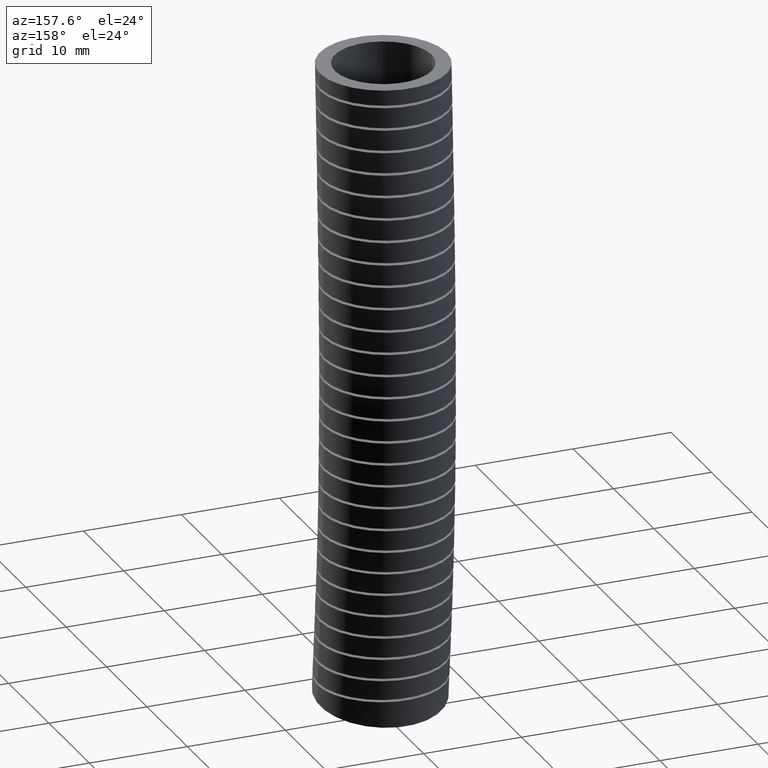
[diagram: clean part render]
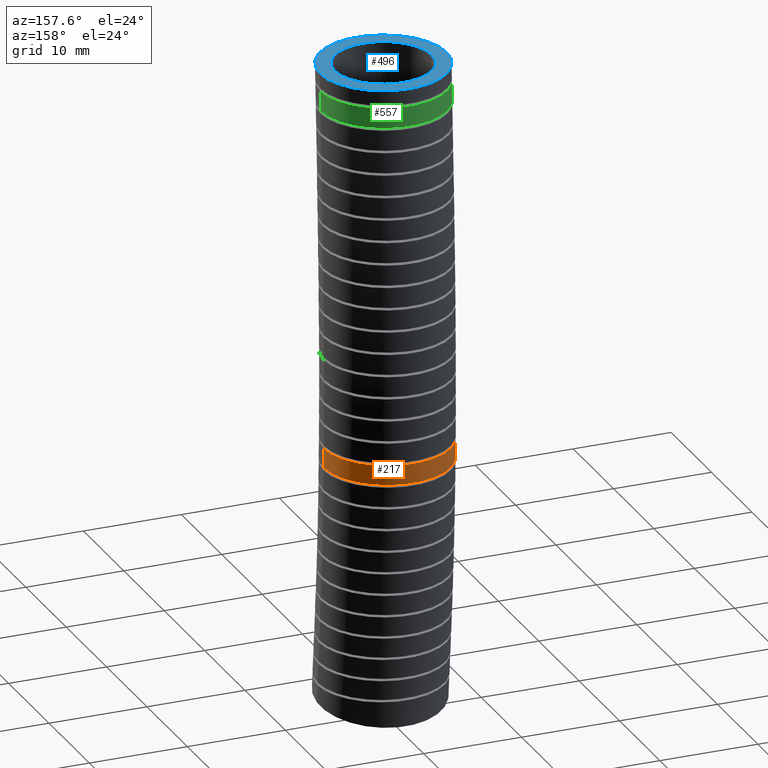
[diagram: same view with three faces highlighted in distinct colors, each labeled with its STEP entity id]
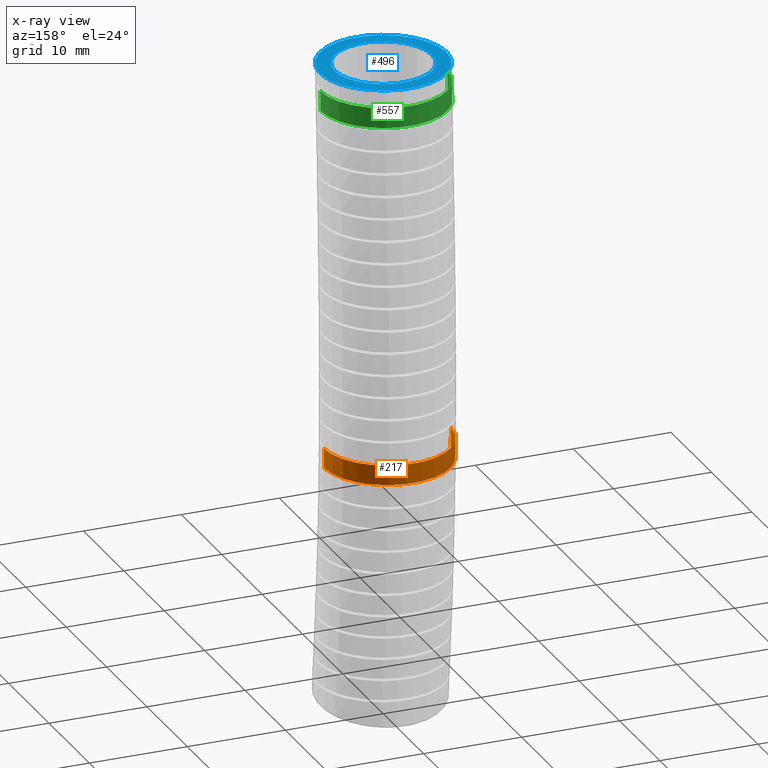
[diagram: x-ray of the same camera — body ghosted, the three highlighted faces saturated]
A machine part, auxiliary view with three faces highlighted in distinct colors.
The next image is the same camera in x-ray (body ghosted, the three faces saturated) — at least one of them is partly hidden behind the body in this view.
Their STEP definitions:

[orange] entity #217 — the highlighted face is a freeform B-spline surface patch.
#25 = EDGE_CURVE ( 'NONE', #59, #26, #1853, .T. ) ;
#26 = VERTEX_POINT ( 'NONE', #1852 ) ;
#29 = VERTEX_POINT ( 'NONE', #2042 ) ;
#31 = EDGE_CURVE ( 'NONE', #58, #29, #1890, .T. ) ;
#58 = VERTEX_POINT ( 'NONE', #2480 ) ;
#59 = VERTEX_POINT ( 'NONE', #2478 ) ;
#217 = ADVANCED_FACE ( 'NONE', ( #8853 ), #8918, .T. ) ;
#218 = EDGE_LOOP ( 'NONE', ( #219, #220, #222, #223 ) ) ;
#219 = ORIENTED_EDGE ( 'NONE', *, *, #25, .F. ) ;
#220 = ORIENTED_EDGE ( 'NONE', *, *, #221, .T. ) ;
#221 = EDGE_CURVE ( 'NONE', #59, #58, #9163, .T. ) ;
#222 = ORIENTED_EDGE ( 'NONE', *, *, #31, .T. ) ;
#223 = ORIENTED_EDGE ( 'NONE', *, *, #224, .T. ) ;
#224 = EDGE_CURVE ( 'NONE', #29, #26, #9132, .T. ) ;
#1850 = CARTESIAN_POINT ( 'NONE',  ( -0.2550000000000000000, 0.03926403961793851300, -1.535937401016798100 ) ) ;
#1851 = CARTESIAN_POINT ( 'NONE',  ( -0.2550000000000000600, 0.03971088625735163400, -1.509273348519600400 ) ) ;
#1852 = CARTESIAN_POINT ( 'NONE',  ( -0.2550000000000000600, 0.03809084991526876000, -1.589254670706610200 ) ) ;
#1853 = B_SPLINE_CURVE_WITH_KNOTS ( 'NONE', 3,
 ( #1851, #1850, #2044, #2043 ),
 .UNSPECIFIED., .F., .F.,
 ( 4, 4 ),
 ( 0.5864015066094011600, 0.6175329930181328000 ),
 .UNSPECIFIED. ) ;
#1886 = CARTESIAN_POINT ( 'NONE',  ( 0.2550000000000000000, 0.03809084992437299800, -1.589254670515454000 ) ) ;
#1887 = CARTESIAN_POINT ( 'NONE',  ( 0.2550000000000000000, 0.03872564752480352200, -1.562597904482537500 ) ) ;
#1888 = CARTESIAN_POINT ( 'NONE',  ( 0.2550000000000000000, 0.03926403961655331600, -1.535937401074538400 ) ) ;
#1889 = CARTESIAN_POINT ( 'NONE',  ( 0.2550000000000000000, 0.03971088625124342300, -1.509273348701841900 ) ) ;
#1890 = B_SPLINE_CURVE_WITH_KNOTS ( 'NONE', 3,
 ( #1889, #1888, #1887, #1886 ),
 .UNSPECIFIED., .F., .F.,
 ( 4, 4 ),
 ( 0.5864015066803463000, 0.6175329929436759200 ),
 .UNSPECIFIED. ) ;
#2042 = CARTESIAN_POINT ( 'NONE',  ( 0.2550000000000000000, 0.03809084992437299800, -1.589254670515454000 ) ) ;
#2043 = CARTESIAN_POINT ( 'NONE',  ( -0.2550000000000000600, 0.03809084991526876000, -1.589254670706610200 ) ) ;
#2044 = CARTESIAN_POINT ( 'NONE',  ( -0.2550000000000000000, 0.03872564752367486200, -1.562597904549317500 ) ) ;
#2478 = CARTESIAN_POINT ( 'NONE',  ( -0.2550000000000000600, 0.03971088625735163400, -1.509273348519600400 ) ) ;
#2480 = CARTESIAN_POINT ( 'NONE',  ( 0.2550000000000000000, 0.03971088625124342300, -1.509273348701841900 ) ) ;
#8640 = CARTESIAN_POINT ( 'NONE',  ( -0.2550000000000000000, 3.122849337825751200E-017, 0.0000000000000000000 ) ) ;
#8641 = CARTESIAN_POINT ( 'NONE',  ( -0.2550000000000000000, -0.5345687628602172600, -2.495768177001302000 ) ) ;
#8698 = CARTESIAN_POINT ( 'NONE',  ( -0.2549999999999999500, 0.5331445723641462500, -0.4883764727230331400 ) ) ;
#8699 = CARTESIAN_POINT ( 'NONE',  ( -0.2549999999999999500, 0.5100000000000000100, 0.0000000000000000000 ) ) ;
#8700 = CARTESIAN_POINT ( 'NONE',  ( -0.2550000000000000000, -0.02999999999999999500, -2.569999999999999800 ) ) ;
#8701 = CARTESIAN_POINT ( 'NONE',  ( -0.2550000000000000000, -0.01126751581493334900, -2.380080086044865000 ) ) ;
#8792 = CARTESIAN_POINT ( 'NONE',  ( -0.2550000000000000000, 0.02578591590436009300, -2.004412636156899000 ) ) ;
#8793 = CARTESIAN_POINT ( 'NONE',  ( -0.2550000000000001700, 0.05488873695197826800, -1.148486533150796300 ) ) ;
#8794 = CARTESIAN_POINT ( 'NONE',  ( -0.2550000000000000000, 0.02298048079048194800, -0.4808413197099051800 ) ) ;
#8853 = FACE_OUTER_BOUND ( 'NONE', #218, .T. ) ;
#8872 = CARTESIAN_POINT ( 'NONE',  ( -0.2549999999999999500, -0.5167458791807605400, -2.314072652159792300 ) ) ;
#8873 = CARTESIAN_POINT ( 'NONE',  ( -0.2550000000000001200, -0.4814916653277938100, -1.954673297706683400 ) ) ;
#8874 = CARTESIAN_POINT ( 'NONE',  ( -0.2550000000000001200, -0.4555031947619409000, -1.130488866548372800 ) ) ;
#8875 = CARTESIAN_POINT ( 'NONE',  ( -0.2550000000000000600, -0.4871836107831824000, -0.4733061666967772200 ) ) ;
#8876 = CARTESIAN_POINT ( 'NONE',  ( -0.2550000000000000600, -0.5100000000000000100, 0.0000000000000000000 ) ) ;
#8877 = CARTESIAN_POINT ( 'NONE',  ( 0.2549999999999999500, -0.5345687628602172600, -2.495768177001302000 ) ) ;
#8878 = CARTESIAN_POINT ( 'NONE',  ( 0.2549999999999998900, -0.5167458791807605400, -2.314072652159792300 ) ) ;
#8879 = CARTESIAN_POINT ( 'NONE',  ( 0.2550000000000000000, -0.4814916653277938100, -1.954673297706683400 ) ) ;
#8880 = CARTESIAN_POINT ( 'NONE',  ( 0.2550000000000000000, -0.4555031947619409000, -1.130488866548372800 ) ) ;
#8881 = CARTESIAN_POINT ( 'NONE',  ( 0.2550000000000000000, -0.4871836107831824000, -0.4733061666967772200 ) ) ;
#8882 = CARTESIAN_POINT ( 'NONE',  ( 0.2550000000000000000, -0.5100000000000000100, 0.0000000000000000000 ) ) ;
#8883 = CARTESIAN_POINT ( 'NONE',  ( 0.2550000000000000000, -0.03000000000000002700, -2.569999999999999800 ) ) ;
#8884 = CARTESIAN_POINT ( 'NONE',  ( 0.2550000000000000000, -0.01126751581493337800, -2.380080086044865000 ) ) ;
#8885 = CARTESIAN_POINT ( 'NONE',  ( 0.2550000000000000000, 0.02578591590436005500, -2.004412636156899000 ) ) ;
#8886 = CARTESIAN_POINT ( 'NONE',  ( 0.2550000000000001700, 0.05488873695197821200, -1.148486533150796300 ) ) ;
#8908 = CARTESIAN_POINT ( 'NONE',  ( 0.2550000000000000000, 0.02298048079048191000, -0.4808413197099051800 ) ) ;
#8909 = CARTESIAN_POINT ( 'NONE',  ( 0.2550000000000000000, 0.0000000000000000000, 0.0000000000000000000 ) ) ;
#8918 =( BOUNDED_SURFACE ( )  B_SPLINE_SURFACE ( 3, 3, ( 
 ( #8909, #8908, #8886, #8885, #8884, #8883 ),
 ( #8882, #8881, #8880, #8879, #8878, #8877 ),
 ( #8876, #8875, #8874, #8873, #8872, #8641 ),
 ( #8640, #8794, #8793, #8792, #8701, #8700 ),
 ( #8699, #8698, #9048, #9054, #9046, #9224 ),
 ( #9117, #9045, #9128, #9209, #9099, #9191 ),
 ( #9221, #9047, #9164, #9100, #9055, #9122 ) ),
 .UNSPECIFIED., .F., .F., .T. ) 
 B_SPLINE_SURFACE_WITH_KNOTS ( ( 4, 3, 4 ),
 ( 4, 1, 1, 4 ),
 ( 0.0000000000000000000, 0.5000000000000000000, 1.000000000000000000 ),
 ( 0.0000000000000000000, 0.5599999999999998300, 0.7775565539011162200, 1.000000000000000000 ),
 .UNSPECIFIED. ) 
 GEOMETRIC_REPRESENTATION_ITEM ( )  RATIONAL_B_SPLINE_SURFACE ( (
 ( 1.000000000000000000, 1.000000000000000000, 0.9999999999999998900, 1.000000000000000000, 1.000000000000000000, 1.000000000000000000),
 ( 0.3333333333333333100, 0.3333333333333333100, 0.3333333333333332600, 0.3333333333333332600, 0.3333333333333333700, 0.3333333333333333100),
 ( 0.3333333333333333100, 0.3333333333333333100, 0.3333333333333332600, 0.3333333333333332600, 0.3333333333333333700, 0.3333333333333333100),
 ( 1.000000000000000000, 1.000000000000000000, 0.9999999999999998900, 1.000000000000000000, 1.000000000000000000, 1.000000000000000000),
 ( 0.3333333333333333100, 0.3333333333333333100, 0.3333333333333332600, 0.3333333333333332600, 0.3333333333333333700, 0.3333333333333333100),
 ( 0.3333333333333333100, 0.3333333333333333100, 0.3333333333333332600, 0.3333333333333332600, 0.3333333333333333700, 0.3333333333333333100),
 ( 1.000000000000000000, 1.000000000000000000, 0.9999999999999998900, 1.000000000000000000, 1.000000000000000000, 1.000000000000000000) ) ) 
 REPRESENTATION_ITEM ( '' )  SURFACE ( )  );
#9045 = CARTESIAN_POINT ( 'NONE',  ( 0.2550000000000000000, 0.5331445723641462500, -0.4883764727230331400 ) ) ;
#9046 = CARTESIAN_POINT ( 'NONE',  ( -0.2549999999999998400, 0.4942108475508936700, -2.446087519929936800 ) ) ;
#9047 = CARTESIAN_POINT ( 'NONE',  ( 0.2550000000000000000, 0.02298048079048191000, -0.4808413197099051800 ) ) ;
#9048 = CARTESIAN_POINT ( 'NONE',  ( -0.2550000000000000000, 0.5652806686658973200, -1.166484199753219600 ) ) ;
#9049 = CARTESIAN_POINT ( 'NONE',  ( 0.2533237959360839000, 0.07326475909600904700, -1.509273348519601500 ) ) ;
#9050 = CARTESIAN_POINT ( 'NONE',  ( 0.2468225392035945400, 0.1058230730591183500, -1.509273348519601300 ) ) ;
#9051 = CARTESIAN_POINT ( 'NONE',  ( 0.2419760457097122100, 0.1218189898898046400, -1.509273348519599300 ) ) ;
#9052 = CARTESIAN_POINT ( 'NONE',  ( 0.2290840920248981600, 0.1528583650059699400, -1.509273348519600200 ) ) ;
#9053 = CARTESIAN_POINT ( 'NONE',  ( 0.2212166436704498000, 0.1675050699954930800, -1.509273348519600400 ) ) ;
#9054 = CARTESIAN_POINT ( 'NONE',  ( -0.2550000000000000000, 0.5330634971365140200, -2.054151974607116000 ) ) ;
#9055 = CARTESIAN_POINT ( 'NONE',  ( 0.2550000000000000000, -0.01126751581493337800, -2.380080086044865000 ) ) ;
#9070 = CARTESIAN_POINT ( 'NONE',  ( 0.08210551571717823700, 0.2814600727404311700, -1.509273348519599700 ) ) ;
#9071 = CARTESIAN_POINT ( 'NONE',  ( 0.06620433255137607400, 0.2862911243094117300, -1.509273348519599900 ) ) ;
#9072 = CARTESIAN_POINT ( 'NONE',  ( 0.03328126228109027500, 0.2928328317543039700, -1.509273348519600400 ) ) ;
#9073 = CARTESIAN_POINT ( 'NONE',  ( 0.01659863123292443600, 0.2944559380396627500, -1.509273348519600600 ) ) ;
#9090 = CARTESIAN_POINT ( 'NONE',  ( -0.1555107254657036300, 0.2422847440057891400, -1.509273348519602200 ) ) ;
#9091 = CARTESIAN_POINT ( 'NONE',  ( -0.1683573086689406400, 0.2317684212808224500, -1.509273348519599300 ) ) ;
#9092 = CARTESIAN_POINT ( 'NONE',  ( -0.1861061264253466300, 0.2140611977596760500, -1.509273348519599300 ) ) ;
#9093 = CARTESIAN_POINT ( 'NONE',  ( 0.2416018565619804900, 0.1200142209216104700, -1.589254670706608600 ) ) ;
#9094 = CARTESIAN_POINT ( 'NONE',  ( 0.2464610988455098200, 0.1040008164514280000, -1.589254670706609100 ) ) ;
#9095 = CARTESIAN_POINT ( 'NONE',  ( 0.2484818746339820800, 0.09592447255879146800, -1.589254670706609300 ) ) ;
#9096 = CARTESIAN_POINT ( 'NONE',  ( 0.2533450115434093800, 0.07149117388751959100, -1.589254670706609100 ) ) ;
#9097 = CARTESIAN_POINT ( 'NONE',  ( 0.2550000000000000000, 0.05493196512750902300, -1.589254670515454000 ) ) ;
#9098 = CARTESIAN_POINT ( 'NONE',  ( 0.2550000000000000000, 0.03809084992437299800, -1.589254670515454000 ) ) ;
#9099 = CARTESIAN_POINT ( 'NONE',  ( 0.2549999999999998900, 0.4942108475508936700, -2.446087519929936800 ) ) ;
#9100 = CARTESIAN_POINT ( 'NONE',  ( 0.2550000000000000000, 0.02578591590436005500, -2.004412636156899000 ) ) ;
#9101 = CARTESIAN_POINT ( 'NONE',  ( -0.2517005731967671400, 0.08139245072333196900, -1.509273348519599900 ) ) ;
#9102 = CARTESIAN_POINT ( 'NONE',  ( -0.2529313840912208500, 0.07315693399549214000, -1.509273348519599700 ) ) ;
#9103 = CARTESIAN_POINT ( 'NONE',  ( -0.2545837305522811200, 0.05649663653130327500, -1.509273348519599700 ) ) ;
#9104 = CARTESIAN_POINT ( 'NONE',  ( -0.2550000000000000600, 0.04805852652228647500, -1.509273348519599900 ) ) ;
#9105 = CARTESIAN_POINT ( 'NONE',  ( -0.2550000000000000600, 0.03971088625735163400, -1.509273348519600400 ) ) ;
#9110 = CARTESIAN_POINT ( 'NONE',  ( 0.06610887618482201600, 0.2842930817575552400, -1.589254670706609100 ) ) ;
#9111 = CARTESIAN_POINT ( 'NONE',  ( 0.08206939222082192100, 0.2794509896782597600, -1.589254670706609500 ) ) ;
#9112 = CARTESIAN_POINT ( 'NONE',  ( 0.09771796402355056900, 0.2738511480929236000, -1.589254670706608000 ) ) ;
#9113 = CARTESIAN_POINT ( 'NONE',  ( 0.1127511215053792500, 0.2667563921994077800, -1.589254670706608600 ) ) ;
#9114 = CARTESIAN_POINT ( 'NONE',  ( 0.1274718980540540700, 0.2589028260040869800, -1.589254670706609100 ) ) ;
#9115 = CARTESIAN_POINT ( 'NONE',  ( 0.1347144565342605900, 0.2545696426308076100, -1.589254670706608200 ) ) ;
#9116 = CARTESIAN_POINT ( 'NONE',  ( 0.1556268995389365800, 0.2406065555169641900, -1.589254670706609100 ) ) ;
#9117 = CARTESIAN_POINT ( 'NONE',  ( 0.2550000000000000000, 0.5100000000000000100, 0.0000000000000000000 ) ) ;
#9118 = CARTESIAN_POINT ( 'NONE',  ( 0.1683567444950547800, 0.2317663300342982500, -1.509273348519600400 ) ) ;
#9119 = CARTESIAN_POINT ( 'NONE',  ( 0.1555153564085029700, 0.2422829733255813000, -1.509273348519599900 ) ) ;
#9120 = CARTESIAN_POINT ( 'NONE',  ( 0.1277813282682002700, 0.2607918831035345700, -1.509273348519599900 ) ) ;
#9121 = CARTESIAN_POINT ( 'NONE',  ( 0.1128199175349941200, 0.2687687308661153000, -1.509273348519599000 ) ) ;
#9122 = CARTESIAN_POINT ( 'NONE',  ( 0.2550000000000000000, -0.03000000000000002700, -2.569999999999999800 ) ) ;
#9123 = CARTESIAN_POINT ( 'NONE',  ( -0.03321331882130232300, 0.2924233554268563800, -1.509273348519599300 ) ) ;
#9124 = CARTESIAN_POINT ( 'NONE',  ( -0.04156784969522759500, 0.2911876080851543100, -1.509273348519599300 ) ) ;
#9125 = CARTESIAN_POINT ( 'NONE',  ( -0.06620681567408628900, 0.2862880330773825400, -1.509273348519599000 ) ) ;
#9126 = CARTESIAN_POINT ( 'NONE',  ( -0.1917888406593112900, 0.2078028971356921400, -1.509273348519599000 ) ) ;
#9127 = CARTESIAN_POINT ( 'NONE',  ( -0.2024045113602908100, 0.1948839236701858400, -1.509273348519599300 ) ) ;
#9128 = CARTESIAN_POINT ( 'NONE',  ( 0.2550000000000000000, 0.5652806686658973200, -1.166484199753219600 ) ) ;
#9130 = CARTESIAN_POINT ( 'NONE',  ( 0.2550000000000000000, 0.03971088625124342300, -1.509273348701841900 ) ) ;
#9131 = CARTESIAN_POINT ( 'NONE',  ( 0.2550000000000001200, 0.05654866439441922500, -1.509273348701842600 ) ) ;
#9132 = B_SPLINE_CURVE_WITH_KNOTS ( 'NONE', 3,
 ( #9098, #9097, #9096, #9095, #9094, #9093, #9162, #9161, #9160, #9159, #9158, #9157, #9116, #9115, #9114, #9113, #9112, #9111, #9110, #9190, #9189, #9188, #9187, #9186, #9185, #9208, #9207, #9206, #9205, #9204, #9203, #9202, #9201, #9200, #9199, #9154, #9153, #9152, #9151, #9150, #9149, #9148, #9147 ),
 .UNSPECIFIED., .F., .F.,
 ( 4, 2, 2, 2, 2, 2, 2, 2, 1, 2, 2, 2, 2, 2, 2, 2, 2, 2, 2, 2, 2, 4 ),
 ( 0.0000000000000000000, 0.001265071292418973800, 0.001897606938628460600, 0.002530142584837947600, 0.003795213877256923300, 0.005060285169675899500, 0.006325356462094876100, 0.006957892108304364900, 0.007590427754513853600, 0.008222963400723343200, 0.008855499046932831900, 0.01012057033935180900, 0.01138564163177078300, 0.01265071292418976100, 0.01328324857039925000, 0.01391578421660873800, 0.01518085550902771600, 0.01644592680144669700, 0.01707846244765618600, 0.01771099809386567400, 0.01897606938628465900, 0.02024114067870364000 ),
 .UNSPECIFIED. ) ;
#9147 = CARTESIAN_POINT ( 'NONE',  ( -0.2550000000000000600, 0.03809084991526876000, -1.589254670706610200 ) ) ;
#9148 = CARTESIAN_POINT ( 'NONE',  ( -0.2550000000000000000, 0.05472633590466687000, -1.589254670706609300 ) ) ;
#9149 = CARTESIAN_POINT ( 'NONE',  ( -0.2533306643626235800, 0.07162070773807230300, -1.589254670706610200 ) ) ;
#9150 = CARTESIAN_POINT ( 'NONE',  ( -0.2468077734956611000, 0.1042774173770860000, -1.589254670706609500 ) ) ;
#9151 = CARTESIAN_POINT ( 'NONE',  ( -0.2419840600609508300, 0.1201665895446805400, -1.589254670706608900 ) ) ;
#9152 = CARTESIAN_POINT ( 'NONE',  ( -0.2323765005185891600, 0.1433335373705122700, -1.589254670706608900 ) ) ;
#9153 = CARTESIAN_POINT ( 'NONE',  ( -0.2287556838258183700, 0.1509743573357667200, -1.589254670706608900 ) ) ;
#9154 = CARTESIAN_POINT ( 'NONE',  ( -0.2208576316014562700, 0.1657127939588876900, -1.589254670706608000 ) ) ;
#9155 = CARTESIAN_POINT ( 'NONE',  ( -0.2420036808960887000, 0.1217414761873012700, -1.509273348519600600 ) ) ;
#9156 = CARTESIAN_POINT ( 'NONE',  ( -0.2468233348364004300, 0.1058219121781865300, -1.509273348519600200 ) ) ;
#9157 = CARTESIAN_POINT ( 'NONE',  ( 0.1684691928427706800, 0.2300634764716632500, -1.589254670706609100 ) ) ;
#9158 = CARTESIAN_POINT ( 'NONE',  ( 0.1920065286729681900, 0.2065663450617955300, -1.589254670706609300 ) ) ;
#9159 = CARTESIAN_POINT ( 'NONE',  ( 0.2027833648376966300, 0.1934553817776782400, -1.589254670706609500 ) ) ;
#9160 = CARTESIAN_POINT ( 'NONE',  ( 0.2213027244776719900, 0.1657561670887602300, -1.589254670706609100 ) ) ;
#9161 = CARTESIAN_POINT ( 'NONE',  ( 0.2291417677967701500, 0.1511192736287420300, -1.589254670706609300 ) ) ;
#9162 = CARTESIAN_POINT ( 'NONE',  ( 0.2387499219382172300, 0.1279722221221212500, -1.589254670706609500 ) ) ;
#9163 = B_SPLINE_CURVE_WITH_KNOTS ( 'NONE', 3,
 ( #9105, #9104, #9103, #9102, #9101, #9156, #9155, #9212, #9211, #9210, #9127, #9126, #9092, #9091, #9090, #9194, #9193, #9192, #9125, #9124, #9123, #9166, #9165, #9073, #9072, #9071, #9070, #9121, #9120, #9119, #9118, #9198, #9197, #9196, #9195, #9053, #9052, #9051, #9050, #9049, #9131, #9130 ),
 .UNSPECIFIED., .F., .F.,
 ( 4, 2, 2, 2, 2, 2, 2, 2, 2, 2, 2, 2, 2, 2, 2, 2, 2, 2, 2, 2, 4 ),
 ( 0.02045605950080125700, 0.02109536230628185700, 0.02173466511176246100, 0.02301327072272366500, 0.02429187633368486800, 0.02493117913916547200, 0.02557048194464607600, 0.02684908755560727300, 0.02812769316656847300, 0.02940629877752967000, 0.03004560158301027000, 0.03068490438849087000, 0.03196350999945207100, 0.03324211561041326400, 0.03452072122137446500, 0.03579932683233566500, 0.03643862963781626500, 0.03707793244329686500, 0.03835653805425805900, 0.03963514366521925200, 0.04091374927618045300 ),
 .UNSPECIFIED. ) ;
#9164 = CARTESIAN_POINT ( 'NONE',  ( 0.2550000000000001700, 0.05488873695197821200, -1.148486533150796300 ) ) ;
#9165 = CARTESIAN_POINT ( 'NONE',  ( -0.008299771607102792600, 0.2944559083863702600, -1.509273348519600200 ) ) ;
#9166 = CARTESIAN_POINT ( 'NONE',  ( -0.01660224798437046400, 0.2940520929216025000, -1.509273348519599700 ) ) ;
#9185 = CARTESIAN_POINT ( 'NONE',  ( -0.06611536277517415800, 0.2847130709598410000, -1.589254670706609500 ) ) ;
#9186 = CARTESIAN_POINT ( 'NONE',  ( -0.03342404902941884000, 0.2912130504283662000, -1.589254670706609500 ) ) ;
#9187 = CARTESIAN_POINT ( 'NONE',  ( -0.01653809337673999000, 0.2928685122819437200, -1.589254670706609300 ) ) ;
#9188 = CARTESIAN_POINT ( 'NONE',  ( 0.01671231941300794400, 0.2928571631799870000, -1.589254670706609300 ) ) ;
#9189 = CARTESIAN_POINT ( 'NONE',  ( 0.03325158577660584900, 0.2912427474896790400, -1.589254670706609100 ) ) ;
#9190 = CARTESIAN_POINT ( 'NONE',  ( 0.05792811380734166200, 0.2863432158344574900, -1.589254670706610000 ) ) ;
#9191 = CARTESIAN_POINT ( 'NONE',  ( 0.2549999999999999500, 0.4745687628602173200, -2.644231822998695900 ) ) ;
#9192 = CARTESIAN_POINT ( 'NONE',  ( -0.08209945792984083000, 0.2814631069007127500, -1.509273348519601300 ) ) ;
#9193 = CARTESIAN_POINT ( 'NONE',  ( -0.1128398963161232100, 0.2687599442421971200, -1.509273348519601000 ) ) ;
#9194 = CARTESIAN_POINT ( 'NONE',  ( -0.1278139180855743000, 0.2607714521256991300, -1.509273348519601500 ) ) ;
#9195 = CARTESIAN_POINT ( 'NONE',  ( 0.2073573860016038900, 0.1882111749952256100, -1.509273348519600200 ) ) ;
#9196 = CARTESIAN_POINT ( 'NONE',  ( 0.2023921051497819800, 0.1949010072345513100, -1.509273348519601000 ) ) ;
#9197 = CARTESIAN_POINT ( 'NONE',  ( 0.1917524499059365900, 0.2078451889794054900, -1.509273348519601000 ) ) ;
#9198 = CARTESIAN_POINT ( 'NONE',  ( 0.1860759526048428000, 0.2140926244985033900, -1.509273348519601000 ) ) ;
#9199 = CARTESIAN_POINT ( 'NONE',  ( -0.2165699935218550500, 0.1728444922637756800, -1.589254670706608600 ) ) ;
#9200 = CARTESIAN_POINT ( 'NONE',  ( -0.2027124488593196000, 0.1935419017815538400, -1.589254670706608900 ) ) ;
#9201 = CARTESIAN_POINT ( 'NONE',  ( -0.1921351737491931700, 0.2064392737212332700, -1.589254670706609300 ) ) ;
#9202 = CARTESIAN_POINT ( 'NONE',  ( -0.1683199902139635200, 0.2302110690808698600, -1.589254670706609100 ) ) ;
#9203 = CARTESIAN_POINT ( 'NONE',  ( -0.1554391231036200100, 0.2407378648422886000, -1.589254670706610400 ) ) ;
#9204 = CARTESIAN_POINT ( 'NONE',  ( -0.1347136265913344300, 0.2545672102173639500, -1.589254670706610200 ) ) ;
#9205 = CARTESIAN_POINT ( 'NONE',  ( -0.1275693666908830900, 0.2588477703602880500, -1.589254670706609300 ) ) ;
#9206 = CARTESIAN_POINT ( 'NONE',  ( -0.1127978836388715000, 0.2667344707237546100, -1.589254670706609500 ) ) ;
#9207 = CARTESIAN_POINT ( 'NONE',  ( -0.1051563169065449100, 0.2703408664691584500, -1.589254670706608600 ) ) ;
#9208 = CARTESIAN_POINT ( 'NONE',  ( -0.08200628340452403900, 0.2799049084568057100, -1.589254670706608600 ) ) ;
#9209 = CARTESIAN_POINT ( 'NONE',  ( 0.2550000000000000000, 0.5330634971365140200, -2.054151974607116000 ) ) ;
#9210 = CARTESIAN_POINT ( 'NONE',  ( -0.2073635567973275100, 0.1882023651761227700, -1.509273348519601500 ) ) ;
#9211 = CARTESIAN_POINT ( 'NONE',  ( -0.2212159701309335800, 0.1675052567315911100, -1.509273348519601700 ) ) ;
#9212 = CARTESIAN_POINT ( 'NONE',  ( -0.2291052356910608900, 0.1528183946421456900, -1.509273348519600200 ) ) ;
#9221 = CARTESIAN_POINT ( 'NONE',  ( 0.2550000000000000000, 0.0000000000000000000, 0.0000000000000000000 ) ) ;
#9224 = CARTESIAN_POINT ( 'NONE',  ( -0.2549999999999998900, 0.4745687628602173200, -2.644231822998695900 ) ) ;

[blue] entity #496 — the highlighted planar face has unit normal (0, 0, 1).
#444 = EDGE_CURVE ( 'NONE', #1648, #1647, #11854, .T. ) ;
#454 = ORIENTED_EDGE ( 'NONE', *, *, #1796, .F. ) ;
#455 = ORIENTED_EDGE ( 'NONE', *, *, #595, .F. ) ;
#496 = ADVANCED_FACE ( 'NONE', ( #11986, #11985 ), #12028, .T. ) ;
#558 = ORIENTED_EDGE ( 'NONE', *, *, #444, .T. ) ;
#559 = ORIENTED_EDGE ( 'NONE', *, *, #1646, .T. ) ;
#564 = EDGE_LOOP ( 'NONE', ( #454, #455 ) ) ;
#595 = EDGE_CURVE ( 'NONE', #1798, #1797, #12930, .T. ) ;
#596 = EDGE_LOOP ( 'NONE', ( #558, #559 ) ) ;
#1646 = EDGE_CURVE ( 'NONE', #1647, #1648, #7538, .T. ) ;
#1647 = VERTEX_POINT ( 'NONE', #7533 ) ;
#1648 = VERTEX_POINT ( 'NONE', #7528 ) ;
#1796 = EDGE_CURVE ( 'NONE', #1797, #1798, #8106, .T. ) ;
#1797 = VERTEX_POINT ( 'NONE', #8102 ) ;
#1798 = VERTEX_POINT ( 'NONE', #8107 ) ;
#7528 = CARTESIAN_POINT ( 'NONE',  ( 0.2550000000000000000, 0.0000000000000000000, 0.0000000000000000000 ) ) ;
#7533 = CARTESIAN_POINT ( 'NONE',  ( -0.2550000000000000000, 3.122849337825751200E-017, 0.0000000000000000000 ) ) ;
#7534 = DIRECTION ( 'NONE',  ( 1.000000000000000000, 0.0000000000000000000, 0.0000000000000000000 ) ) ;
#7535 = DIRECTION ( 'NONE',  ( 0.0000000000000000000, 0.0000000000000000000, 1.000000000000000000 ) ) ;
#7536 = CARTESIAN_POINT ( 'NONE',  ( 0.0000000000000000000, 0.0000000000000000000, 0.0000000000000000000 ) ) ;
#7537 = AXIS2_PLACEMENT_3D ( 'NONE', #7536, #7535, #7534 ) ;
#7538 = CIRCLE ( 'NONE', #7537, 0.2550000000000000000 ) ;
#8102 = CARTESIAN_POINT ( 'NONE',  ( 0.1950000000000000100, 0.0000000000000000000, 0.0000000000000000000 ) ) ;
#8103 = DIRECTION ( 'NONE',  ( 1.000000000000000000, 0.0000000000000000000, 0.0000000000000000000 ) ) ;
#8104 = DIRECTION ( 'NONE',  ( 0.0000000000000000000, 0.0000000000000000000, 1.000000000000000000 ) ) ;
#8105 = AXIS2_PLACEMENT_3D ( 'NONE', #8176, #8104, #8103 ) ;
#8106 = CIRCLE ( 'NONE', #8105, 0.1950000000000000100 ) ;
#8107 = CARTESIAN_POINT ( 'NONE',  ( -0.1950000000000000100, 2.388061258337338700E-017, 0.0000000000000000000 ) ) ;
#8176 = CARTESIAN_POINT ( 'NONE',  ( 0.0000000000000000000, 0.0000000000000000000, 0.0000000000000000000 ) ) ;
#11850 = DIRECTION ( 'NONE',  ( 1.000000000000000000, 0.0000000000000000000, 0.0000000000000000000 ) ) ;
#11851 = DIRECTION ( 'NONE',  ( 0.0000000000000000000, 0.0000000000000000000, 1.000000000000000000 ) ) ;
#11852 = CARTESIAN_POINT ( 'NONE',  ( 0.0000000000000000000, 0.0000000000000000000, 0.0000000000000000000 ) ) ;
#11853 = AXIS2_PLACEMENT_3D ( 'NONE', #11852, #11851, #11850 ) ;
#11854 = CIRCLE ( 'NONE', #11853, 0.2550000000000000000 ) ;
#11985 = FACE_OUTER_BOUND ( 'NONE', #596, .T. ) ;
#11986 = FACE_BOUND ( 'NONE', #564, .T. ) ;
#12028 = PLANE ( 'NONE',  #12081 ) ;
#12078 = DIRECTION ( 'NONE',  ( 1.000000000000000000, 0.0000000000000000000, 0.0000000000000000000 ) ) ;
#12079 = DIRECTION ( 'NONE',  ( 0.0000000000000000000, 0.0000000000000000000, 1.000000000000000000 ) ) ;
#12080 = CARTESIAN_POINT ( 'NONE',  ( 0.0000000000000000000, 0.0000000000000000000, 0.0000000000000000000 ) ) ;
#12081 = AXIS2_PLACEMENT_3D ( 'NONE', #12080, #12079, #12078 ) ;
#12927 = DIRECTION ( 'NONE',  ( 1.000000000000000000, 0.0000000000000000000, 0.0000000000000000000 ) ) ;
#12928 = DIRECTION ( 'NONE',  ( 0.0000000000000000000, 0.0000000000000000000, 1.000000000000000000 ) ) ;
#12929 = AXIS2_PLACEMENT_3D ( 'NONE', #13136, #12928, #12927 ) ;
#12930 = CIRCLE ( 'NONE', #12929, 0.1950000000000000100 ) ;
#13136 = CARTESIAN_POINT ( 'NONE',  ( 0.0000000000000000000, 0.0000000000000000000, 0.0000000000000000000 ) ) ;

[green] entity #557 — the highlighted face is a freeform B-spline surface patch.
#498 = ORIENTED_EDGE ( 'NONE', *, *, #1653, .T. ) ;
#499 = ORIENTED_EDGE ( 'NONE', *, *, #521, .T. ) ;
#518 = EDGE_LOOP ( 'NONE', ( #579, #519, #498, #499 ) ) ;
#519 = ORIENTED_EDGE ( 'NONE', *, *, #520, .T. ) ;
#520 = EDGE_CURVE ( 'NONE', #1761, #1760, #12254, .T. ) ;
#521 = EDGE_CURVE ( 'NONE', #1767, #1764, #12405, .T. ) ;
#557 = ADVANCED_FACE ( 'NONE', ( #12599 ), #12587, .T. ) ;
#579 = ORIENTED_EDGE ( 'NONE', *, *, #1763, .F. ) ;
#1653 = EDGE_CURVE ( 'NONE', #1760, #1767, #7631, .T. ) ;
#1760 = VERTEX_POINT ( 'NONE', #7865 ) ;
#1761 = VERTEX_POINT ( 'NONE', #7863 ) ;
#1763 = EDGE_CURVE ( 'NONE', #1761, #1764, #7684, .T. ) ;
#1764 = VERTEX_POINT ( 'NONE', #7683 ) ;
#1767 = VERTEX_POINT ( 'NONE', #7891 ) ;
#7629 = CARTESIAN_POINT ( 'NONE',  ( 0.2550000000000000000, 0.003342229895704929000, -0.06999999999999996500 ) ) ;
#7631 = B_SPLINE_CURVE_WITH_KNOTS ( 'NONE', 3,
 ( #7629, #7646, #7645, #7644 ),
 .UNSPECIFIED., .F., .F.,
 ( 4, 4 ),
 ( 0.02717464062037684700, 0.05819250826746008600 ),
 .UNSPECIFIED. ) ;
#7644 = CARTESIAN_POINT ( 'NONE',  ( 0.2549999999999998900, 0.007132320659472311100, -0.1498989255279078400 ) ) ;
#7645 = CARTESIAN_POINT ( 'NONE',  ( 0.2550000000000000000, 0.005876373196357231500, -0.1232662378546238000 ) ) ;
#7646 = CARTESIAN_POINT ( 'NONE',  ( 0.2550000000000000000, 0.004611407261492337900, -0.09663320056008986600 ) ) ;
#7679 = CARTESIAN_POINT ( 'NONE',  ( -0.2550000000000000000, 0.007132320659471501000, -0.1498989255278988800 ) ) ;
#7680 = CARTESIAN_POINT ( 'NONE',  ( -0.2549999999999998900, 0.005876373196356980000, -0.1232662378546178200 ) ) ;
#7681 = CARTESIAN_POINT ( 'NONE',  ( -0.2549999999999998900, 0.004611407261492227700, -0.09663320056008689600 ) ) ;
#7682 = CARTESIAN_POINT ( 'NONE',  ( -0.2550000000000000000, 0.003342229895704961100, -0.06999999999999995100 ) ) ;
#7683 = CARTESIAN_POINT ( 'NONE',  ( -0.2550000000000000000, 0.007132320659471501000, -0.1498989255278988800 ) ) ;
#7684 = B_SPLINE_CURVE_WITH_KNOTS ( 'NONE', 3,
 ( #7682, #7681, #7680, #7679 ),
 .UNSPECIFIED., .F., .F.,
 ( 4, 4 ),
 ( 0.02717464062037684400, 0.05819250826745659500 ),
 .UNSPECIFIED. ) ;
#7863 = CARTESIAN_POINT ( 'NONE',  ( -0.2550000000000000000, 0.003342229895704961100, -0.06999999999999995100 ) ) ;
#7865 = CARTESIAN_POINT ( 'NONE',  ( 0.2550000000000000000, 0.003342229895704929000, -0.06999999999999996500 ) ) ;
#7891 = CARTESIAN_POINT ( 'NONE',  ( 0.2549999999999998900, 0.007132320659472311100, -0.1498989255279078400 ) ) ;
#12242 = CARTESIAN_POINT ( 'NONE',  ( 0.2212431459084317200, 0.1312126908871645800, -0.06999999999999995100 ) ) ;
#12243 = CARTESIAN_POINT ( 'NONE',  ( 0.2073907136003790800, 0.1519379247563979700, -0.06999999999999995100 ) ) ;
#12244 = CARTESIAN_POINT ( 'NONE',  ( 0.2024276326816211700, 0.1586342780973452900, -0.06999999999999996500 ) ) ;
#12245 = CARTESIAN_POINT ( 'NONE',  ( 0.1917920973873415400, 0.1715917221511507100, -0.06999999999999996500 ) ) ;
#12246 = CARTESIAN_POINT ( 'NONE',  ( 0.1861171946465785800, 0.1778462708634355700, -0.06999999999999988200 ) ) ;
#12247 = CARTESIAN_POINT ( 'NONE',  ( 0.1684015404364692100, 0.1955412610910766100, -0.06999999999999989600 ) ) ;
#12248 = CARTESIAN_POINT ( 'NONE',  ( 0.1555610705566262400, 0.2060721096325976700, -0.06999999999999999300 ) ) ;
#12249 = CARTESIAN_POINT ( 'NONE',  ( 0.1278248699638422400, 0.2246080903976648000, -0.06999999999999999300 ) ) ;
#12250 = CARTESIAN_POINT ( 'NONE',  ( 0.1128611705188059100, 0.2325972927125505300, -0.07000000000000003400 ) ) ;
#12251 = CARTESIAN_POINT ( 'NONE',  ( 0.08213832303612182700, 0.2453094989673812500, -0.06999999999999999300 ) ) ;
#12252 = CARTESIAN_POINT ( 'NONE',  ( 0.06623080816052591400, 0.2501492721125149200, -0.07000000000000003400 ) ) ;
#12253 = CARTESIAN_POINT ( 'NONE',  ( 0.03329002285974553400, 0.2567029355867326800, -0.07000000000000004800 ) ) ;
#12254 = B_SPLINE_CURVE_WITH_KNOTS ( 'NONE', 3,
 ( #12271, #12270, #12269, #12268, #12267, #12266, #12265, #12264, #12263, #12262, #12261, #12260, #12259, #12258, #12307, #12306, #12305, #12304, #12303, #12302, #12301, #12300, #12299, #12298, #12253, #12252, #12251, #12250, #12249, #12248, #12247, #12246, #12245, #12244, #12243, #12242, #12413, #12412, #12411, #12410, #12409, #12408 ),
 .UNSPECIFIED., .F., .F.,
 ( 4, 2, 2, 2, 2, 2, 2, 2, 2, 2, 2, 2, 2, 2, 2, 2, 2, 2, 2, 2, 4 ),
 ( 0.02046596434497579800, 0.02110556245283421600, 0.02174516056069263800, 0.02302435677640947400, 0.02430355299212631400, 0.02494315109998473600, 0.02558274920784315400, 0.02686194542355999400, 0.02814114163927683100, 0.02942033785499367100, 0.03005993596285208900, 0.03069953407071050700, 0.03197873028642735100, 0.03325792650214418100, 0.03453712271786102400, 0.03581631893357785400, 0.03645591704143627500, 0.03709551514929469700, 0.03837471136501153400, 0.03965390758072837000, 0.04093310379644520700 ),
 .UNSPECIFIED. ) ;
#12258 = CARTESIAN_POINT ( 'NONE',  ( -0.1684048757228762400, 0.1955410411536724100, -0.06999999999999992300 ) ) ;
#12259 = CARTESIAN_POINT ( 'NONE',  ( -0.1861511829910644200, 0.1778107617414080600, -0.06999999999999992300 ) ) ;
#12260 = CARTESIAN_POINT ( 'NONE',  ( -0.1918320692584426500, 0.1715452441758118200, -0.06999999999999992300 ) ) ;
#12261 = CARTESIAN_POINT ( 'NONE',  ( -0.2024422955114835200, 0.1586141822742742100, -0.06999999999999992300 ) ) ;
#12262 = CARTESIAN_POINT ( 'NONE',  ( -0.2073986768564122200, 0.1519265756353453400, -0.07000000000000000700 ) ) ;
#12263 = CARTESIAN_POINT ( 'NONE',  ( -0.2212432991067021500, 0.1312113305817153300, -0.07000000000000000700 ) ) ;
#12264 = CARTESIAN_POINT ( 'NONE',  ( -0.2291286345480290900, 0.1165098797382444200, -0.07000000000000004800 ) ) ;
#12265 = CARTESIAN_POINT ( 'NONE',  ( -0.2420158665847954600, 0.08541442954292938200, -0.07000000000000006200 ) ) ;
#12266 = CARTESIAN_POINT ( 'NONE',  ( -0.2468311503513281300, 0.06948598249715902400, -0.06999999999999991000 ) ) ;
#12267 = CARTESIAN_POINT ( 'NONE',  ( -0.2517038146969315400, 0.04504379504625150000, -0.06999999999999992300 ) ) ;
#12268 = CARTESIAN_POINT ( 'NONE',  ( -0.2529334356655766900, 0.03680413730714798100, -0.06999999999999999300 ) ) ;
#12269 = CARTESIAN_POINT ( 'NONE',  ( -0.2545841561700302700, 0.02013578064606690000, -0.07000000000000000700 ) ) ;
#12270 = CARTESIAN_POINT ( 'NONE',  ( -0.2550000000000000600, 0.01169381918817614100, -0.06999999999999995100 ) ) ;
#12271 = CARTESIAN_POINT ( 'NONE',  ( -0.2550000000000000000, 0.003342229895704961100, -0.06999999999999995100 ) ) ;
#12298 = CARTESIAN_POINT ( 'NONE',  ( 0.01660328449688659000, 0.2583282918311868800, -0.06999999999999992300 ) ) ;
#12299 = CARTESIAN_POINT ( 'NONE',  ( -0.008307204358373071100, 0.2583279296161975500, -0.06999999999999992300 ) ) ;
#12300 = CARTESIAN_POINT ( 'NONE',  ( -0.01661406317592658100, 0.2579232411214857400, -0.06999999999999999300 ) ) ;
#12301 = CARTESIAN_POINT ( 'NONE',  ( -0.03323462014654829400, 0.2562909799960680900, -0.06999999999999999300 ) ) ;
#12302 = CARTESIAN_POINT ( 'NONE',  ( -0.04159410201453633800, 0.2550524817625476300, -0.06999999999999999300 ) ) ;
#12303 = CARTESIAN_POINT ( 'NONE',  ( -0.06623988223378465800, 0.2501441189013580100, -0.06999999999999996500 ) ) ;
#12304 = CARTESIAN_POINT ( 'NONE',  ( -0.08213738228926893700, 0.2453108704540751300, -0.06999999999999996500 ) ) ;
#12305 = CARTESIAN_POINT ( 'NONE',  ( -0.1128878267086324400, 0.2325852801138512400, -0.06999999999999997900 ) ) ;
#12306 = CARTESIAN_POINT ( 'NONE',  ( -0.1278648040213721500, 0.2245832179215715400, -0.06999999999999999300 ) ) ;
#12307 = CARTESIAN_POINT ( 'NONE',  ( -0.1555595848982552800, 0.2060712846909697500, -0.06999999999999999300 ) ) ;
#12362 = CARTESIAN_POINT ( 'NONE',  ( -0.2550000000000000000, 0.007132320659471501000, -0.1498989255278988800 ) ) ;
#12363 = CARTESIAN_POINT ( 'NONE',  ( -0.2549999999999999500, 0.02383400956351430400, -0.1498989255278988800 ) ) ;
#12364 = CARTESIAN_POINT ( 'NONE',  ( -0.2533744140688325400, 0.04035995972963876700, -0.1498989255278988200 ) ) ;
#12365 = CARTESIAN_POINT ( 'NONE',  ( -0.2468908889789387700, 0.07306241702979372800, -0.1498989255278988000 ) ) ;
#12366 = CARTESIAN_POINT ( 'NONE',  ( -0.2419669698301116800, 0.08930227172900112600, -0.1498989255278989100 ) ) ;
#12367 = CARTESIAN_POINT ( 'NONE',  ( -0.2292444513679477400, 0.1200280981446495000, -0.1498989255278988800 ) ) ;
#12368 = CARTESIAN_POINT ( 'NONE',  ( -0.2214271704760167300, 0.1346964672346943900, -0.1498989255278988200 ) ) ;
#12369 = CARTESIAN_POINT ( 'NONE',  ( -0.2074580132999575600, 0.1556289638108003500, -0.1498989255278988800 ) ) ;
#12370 = CARTESIAN_POINT ( 'NONE',  ( -0.2024342050672015300, 0.1624036059039516100, -0.1498989255278989100 ) ) ;
#12371 = CARTESIAN_POINT ( 'NONE',  ( -0.1918534073150430500, 0.1752990542473756000, -0.1498989255278989400 ) ) ;
#12372 = CARTESIAN_POINT ( 'NONE',  ( -0.1806909637532309000, 0.1876162191864381200, -0.1498989255278988800 ) ) ;
#12373 = CARTESIAN_POINT ( 'NONE',  ( -0.1683810503138819800, 0.1987925475954846200, -0.1498989255278988800 ) ) ;
#12374 = CARTESIAN_POINT ( 'NONE',  ( -0.1554886944653043100, 0.2093898006056150700, -0.1498989255278989100 ) ) ;
#12375 = CARTESIAN_POINT ( 'NONE',  ( -0.1487114423442575100, 0.2144240832761813200, -0.1498989255278991000 ) ) ;
#12376 = CARTESIAN_POINT ( 'NONE',  ( -0.1278057069988899300, 0.2284015216427224300, -0.1498989255278990500 ) ) ;
#12377 = CARTESIAN_POINT ( 'NONE',  ( -0.1131481044574548900, 0.2362317940485383600, -0.1498989255278989100 ) ) ;
#12378 = CARTESIAN_POINT ( 'NONE',  ( -0.08242611638336841400, 0.2489867470013418500, -0.1498989255278989100 ) ) ;
#12379 = CARTESIAN_POINT ( 'NONE',  ( -0.06618583700786741200, 0.2539267455098950200, -0.1498989255278988000 ) ) ;
#12380 = CARTESIAN_POINT ( 'NONE',  ( -0.03350344346644353700, 0.2604400294994167500, -0.1498989255278988200 ) ) ;
#12381 = CARTESIAN_POINT ( 'NONE',  ( -0.01697839190409618600, 0.2620840985260555200, -0.1498989255278988800 ) ) ;
#12382 = CARTESIAN_POINT ( 'NONE',  ( 0.008087352081561794600, 0.2621104287876133100, -0.1498989255278988500 ) ) ;
#12383 = CARTESIAN_POINT ( 'NONE',  ( 0.01653241334918536000, 0.2617029398386472300, -0.1498989255278988200 ) ) ;
#12384 = CARTESIAN_POINT ( 'NONE',  ( 0.03319073280596921600, 0.2600712334777975400, -0.1498989255278988200 ) ) ;
#12385 = CARTESIAN_POINT ( 'NONE',  ( 0.04142794856382359800, 0.2588514819871136100, -0.1498989255278986900 ) ) ;
#12386 = CARTESIAN_POINT ( 'NONE',  ( 0.06586996747244815200, 0.2540077839853492900, -0.1498989255278986600 ) ) ;
#12387 = CARTESIAN_POINT ( 'NONE',  ( 0.08180779253304350200, 0.2492110362686151800, -0.1498989255278988800 ) ) ;
#12388 = CARTESIAN_POINT ( 'NONE',  ( 0.1129395996424196100, 0.2363499319444676800, -0.1498989255278988800 ) ) ;
#12389 = CARTESIAN_POINT ( 'NONE',  ( 0.1276209185344105700, 0.2284964932962524300, -0.1498989255278988200 ) ) ;
#12390 = CARTESIAN_POINT ( 'NONE',  ( 0.1483537515898669900, 0.2146770608437320000, -0.1498989255278988000 ) ) ;
#12391 = CARTESIAN_POINT ( 'NONE',  ( 0.1550492162661572500, 0.2097277721981881900, -0.1498989255278988000 ) ) ;
#12392 = CARTESIAN_POINT ( 'NONE',  ( 0.1679994382001246100, 0.1991280641780409400, -0.1498989255278988200 ) ) ;
#12393 = CARTESIAN_POINT ( 'NONE',  ( 0.1742701563180052700, 0.1934557542088015400, -0.1498989255278988000 ) ) ;
#12394 = CARTESIAN_POINT ( 'NONE',  ( 0.1920108893816570800, 0.1757423928461867000, -0.1498989255278988000 ) ) ;
#12395 = CARTESIAN_POINT ( 'NONE',  ( 0.2025563916628956600, 0.1629132725262524000, -0.1498989255278990200 ) ) ;
#12396 = CARTESIAN_POINT ( 'NONE',  ( 0.2211079777113991700, 0.1352336213006784200, -0.1498989255278989100 ) ) ;
#12397 = CARTESIAN_POINT ( 'NONE',  ( 0.2291255374625874300, 0.1202700288334065500, -0.1498989255278988500 ) ) ;
#12398 = CARTESIAN_POINT ( 'NONE',  ( 0.2418841841453302200, 0.08954674982220882400, -0.1498989255278988500 ) ) ;
#12399 = CARTESIAN_POINT ( 'NONE',  ( 0.2467383509036485700, 0.07365424674482343200, -0.1498989255278989600 ) ) ;
#12400 = CARTESIAN_POINT ( 'NONE',  ( 0.2533247582084591800, 0.04078258698472159900, -0.1498989255278989900 ) ) ;
#12401 = CARTESIAN_POINT ( 'NONE',  ( 0.2549999999999998400, 0.02397636666079460200, -0.1498989255279078200 ) ) ;
#12402 = CARTESIAN_POINT ( 'NONE',  ( 0.2549999999999998900, 0.007132320659472311100, -0.1498989255279078400 ) ) ;
#12405 = B_SPLINE_CURVE_WITH_KNOTS ( 'NONE', 3,
 ( #12402, #12401, #12400, #12399, #12398, #12397, #12396, #12395, #12394, #12393, #12392, #12391, #12390, #12389, #12388, #12387, #12386, #12385, #12384, #12383, #12382, #12381, #12380, #12379, #12378, #12377, #12376, #12375, #12374, #12373, #12372, #12371, #12370, #12369, #12368, #12367, #12366, #12365, #12364, #12363, #12362 ),
 .UNSPECIFIED., .F., .F.,
 ( 4, 2, 2, 2, 2, 2, 2, 2, 2, 2, 2, 2, 2, 2, 2, 1, 2, 2, 2, 2, 4 ),
 ( 0.0000000000000000000, 0.001279083248557479400, 0.002558166497114958700, 0.003837249745672438300, 0.005116332994229917500, 0.005755874618508656000, 0.006395416242787394500, 0.007674499491344870600, 0.008953582739902349300, 0.009593124364181087800, 0.01023266598845982600, 0.01151174923701730200, 0.01279083248557477900, 0.01406991573413225400, 0.01470945735841099200, 0.01534899898268972700, 0.01598854060696846800, 0.01662808223124720400, 0.01790716547980467800, 0.01918624872836215500, 0.02046533197691962800 ),
 .UNSPECIFIED. ) ;
#12408 = CARTESIAN_POINT ( 'NONE',  ( 0.2550000000000000000, 0.003342229895704929000, -0.06999999999999996500 ) ) ;
#12409 = CARTESIAN_POINT ( 'NONE',  ( 0.2549999999999999500, 0.02018776159932553900, -0.07000000000000161600 ) ) ;
#12410 = CARTESIAN_POINT ( 'NONE',  ( 0.2533255025702745900, 0.03691212888900916000, -0.07000000000000003400 ) ) ;
#12411 = CARTESIAN_POINT ( 'NONE',  ( 0.2468301374660939500, 0.06948804089028677600, -0.07000000000000003400 ) ) ;
#12412 = CARTESIAN_POINT ( 'NONE',  ( 0.2419884348824680200, 0.08549191509664130800, -0.06999999999999999300 ) ) ;
#12413 = CARTESIAN_POINT ( 'NONE',  ( 0.2291057322572993300, 0.1165538002483180300, -0.06999999999999999300 ) ) ;
#12540 = CARTESIAN_POINT ( 'NONE',  ( 0.2550000000000000000, -0.03000000000000002700, -2.569999999999999800 ) ) ;
#12541 = CARTESIAN_POINT ( 'NONE',  ( 0.2550000000000000000, -0.01126751581493337800, -2.380080086044865000 ) ) ;
#12542 = CARTESIAN_POINT ( 'NONE',  ( 0.2550000000000000000, 0.02578591590436005500, -2.004412636156899000 ) ) ;
#12543 = CARTESIAN_POINT ( 'NONE',  ( 0.2550000000000001700, 0.05488873695197821200, -1.148486533150796300 ) ) ;
#12544 = CARTESIAN_POINT ( 'NONE',  ( 0.2550000000000000000, 0.02298048079048191000, -0.4808413197099051800 ) ) ;
#12545 = CARTESIAN_POINT ( 'NONE',  ( 0.2550000000000000000, 0.0000000000000000000, 0.0000000000000000000 ) ) ;
#12546 = CARTESIAN_POINT ( 'NONE',  ( 0.2549999999999999500, 0.4745687628602173200, -2.644231822998695900 ) ) ;
#12547 = CARTESIAN_POINT ( 'NONE',  ( 0.2549999999999998900, 0.4942108475508936700, -2.446087519929936800 ) ) ;
#12548 = CARTESIAN_POINT ( 'NONE',  ( 0.2550000000000000000, 0.5330634971365140200, -2.054151974607116000 ) ) ;
#12549 = CARTESIAN_POINT ( 'NONE',  ( 0.2550000000000000000, 0.5652806686658973200, -1.166484199753219600 ) ) ;
#12587 =( BOUNDED_SURFACE ( )  B_SPLINE_SURFACE ( 3, 3, ( 
 ( #12638, #12637, #12636, #12635, #12634, #12633 ),
 ( #12632, #12631, #12630, #12629, #12628, #12627 ),
 ( #12626, #12625, #12624, #12623, #12622, #12621 ),
 ( #12620, #12619, #12618, #12617, #12616, #12615 ),
 ( #12614, #12613, #12612, #12611, #12610, #12609 ),
 ( #12608, #12607, #12549, #12548, #12547, #12546 ),
 ( #12545, #12544, #12543, #12542, #12541, #12540 ) ),
 .UNSPECIFIED., .F., .F., .T. ) 
 B_SPLINE_SURFACE_WITH_KNOTS ( ( 4, 3, 4 ),
 ( 4, 1, 1, 4 ),
 ( 0.0000000000000000000, 0.5000000000000000000, 1.000000000000000000 ),
 ( 0.0000000000000000000, 0.5599999999999998300, 0.7775565539011162200, 1.000000000000000000 ),
 .UNSPECIFIED. ) 
 GEOMETRIC_REPRESENTATION_ITEM ( )  RATIONAL_B_SPLINE_SURFACE ( (
 ( 1.000000000000000000, 1.000000000000000000, 0.9999999999999998900, 1.000000000000000000, 1.000000000000000000, 1.000000000000000000),
 ( 0.3333333333333333100, 0.3333333333333333100, 0.3333333333333332600, 0.3333333333333332600, 0.3333333333333333700, 0.3333333333333333100),
 ( 0.3333333333333333100, 0.3333333333333333100, 0.3333333333333332600, 0.3333333333333332600, 0.3333333333333333700, 0.3333333333333333100),
 ( 1.000000000000000000, 1.000000000000000000, 0.9999999999999998900, 1.000000000000000000, 1.000000000000000000, 1.000000000000000000),
 ( 0.3333333333333333100, 0.3333333333333333100, 0.3333333333333332600, 0.3333333333333332600, 0.3333333333333333700, 0.3333333333333333100),
 ( 0.3333333333333333100, 0.3333333333333333100, 0.3333333333333332600, 0.3333333333333332600, 0.3333333333333333700, 0.3333333333333333100),
 ( 1.000000000000000000, 1.000000000000000000, 0.9999999999999998900, 1.000000000000000000, 1.000000000000000000, 1.000000000000000000) ) ) 
 REPRESENTATION_ITEM ( '' )  SURFACE ( )  );
#12599 = FACE_OUTER_BOUND ( 'NONE', #518, .T. ) ;
#12607 = CARTESIAN_POINT ( 'NONE',  ( 0.2550000000000000000, 0.5331445723641462500, -0.4883764727230331400 ) ) ;
#12608 = CARTESIAN_POINT ( 'NONE',  ( 0.2550000000000000000, 0.5100000000000000100, 0.0000000000000000000 ) ) ;
#12609 = CARTESIAN_POINT ( 'NONE',  ( -0.2549999999999998900, 0.4745687628602173200, -2.644231822998695900 ) ) ;
#12610 = CARTESIAN_POINT ( 'NONE',  ( -0.2549999999999998400, 0.4942108475508936700, -2.446087519929936800 ) ) ;
#12611 = CARTESIAN_POINT ( 'NONE',  ( -0.2550000000000000000, 0.5330634971365140200, -2.054151974607116000 ) ) ;
#12612 = CARTESIAN_POINT ( 'NONE',  ( -0.2550000000000000000, 0.5652806686658973200, -1.166484199753219600 ) ) ;
#12613 = CARTESIAN_POINT ( 'NONE',  ( -0.2549999999999999500, 0.5331445723641462500, -0.4883764727230331400 ) ) ;
#12614 = CARTESIAN_POINT ( 'NONE',  ( -0.2549999999999999500, 0.5100000000000000100, 0.0000000000000000000 ) ) ;
#12615 = CARTESIAN_POINT ( 'NONE',  ( -0.2550000000000000000, -0.02999999999999999500, -2.569999999999999800 ) ) ;
#12616 = CARTESIAN_POINT ( 'NONE',  ( -0.2550000000000000000, -0.01126751581493334900, -2.380080086044865000 ) ) ;
#12617 = CARTESIAN_POINT ( 'NONE',  ( -0.2550000000000000000, 0.02578591590436009300, -2.004412636156899000 ) ) ;
#12618 = CARTESIAN_POINT ( 'NONE',  ( -0.2550000000000001700, 0.05488873695197826800, -1.148486533150796300 ) ) ;
#12619 = CARTESIAN_POINT ( 'NONE',  ( -0.2550000000000000000, 0.02298048079048194800, -0.4808413197099051800 ) ) ;
#12620 = CARTESIAN_POINT ( 'NONE',  ( -0.2550000000000000000, 3.122849337825751200E-017, 0.0000000000000000000 ) ) ;
#12621 = CARTESIAN_POINT ( 'NONE',  ( -0.2550000000000000000, -0.5345687628602172600, -2.495768177001302000 ) ) ;
#12622 = CARTESIAN_POINT ( 'NONE',  ( -0.2549999999999999500, -0.5167458791807605400, -2.314072652159792300 ) ) ;
#12623 = CARTESIAN_POINT ( 'NONE',  ( -0.2550000000000001200, -0.4814916653277938100, -1.954673297706683400 ) ) ;
#12624 = CARTESIAN_POINT ( 'NONE',  ( -0.2550000000000001200, -0.4555031947619409000, -1.130488866548372800 ) ) ;
#12625 = CARTESIAN_POINT ( 'NONE',  ( -0.2550000000000000600, -0.4871836107831824000, -0.4733061666967772200 ) ) ;
#12626 = CARTESIAN_POINT ( 'NONE',  ( -0.2550000000000000600, -0.5100000000000000100, 0.0000000000000000000 ) ) ;
#12627 = CARTESIAN_POINT ( 'NONE',  ( 0.2549999999999999500, -0.5345687628602172600, -2.495768177001302000 ) ) ;
#12628 = CARTESIAN_POINT ( 'NONE',  ( 0.2549999999999998900, -0.5167458791807605400, -2.314072652159792300 ) ) ;
#12629 = CARTESIAN_POINT ( 'NONE',  ( 0.2550000000000000000, -0.4814916653277938100, -1.954673297706683400 ) ) ;
#12630 = CARTESIAN_POINT ( 'NONE',  ( 0.2550000000000000000, -0.4555031947619409000, -1.130488866548372800 ) ) ;
#12631 = CARTESIAN_POINT ( 'NONE',  ( 0.2550000000000000000, -0.4871836107831824000, -0.4733061666967772200 ) ) ;
#12632 = CARTESIAN_POINT ( 'NONE',  ( 0.2550000000000000000, -0.5100000000000000100, 0.0000000000000000000 ) ) ;
#12633 = CARTESIAN_POINT ( 'NONE',  ( 0.2550000000000000000, -0.03000000000000002700, -2.569999999999999800 ) ) ;
#12634 = CARTESIAN_POINT ( 'NONE',  ( 0.2550000000000000000, -0.01126751581493337800, -2.380080086044865000 ) ) ;
#12635 = CARTESIAN_POINT ( 'NONE',  ( 0.2550000000000000000, 0.02578591590436005500, -2.004412636156899000 ) ) ;
#12636 = CARTESIAN_POINT ( 'NONE',  ( 0.2550000000000001700, 0.05488873695197821200, -1.148486533150796300 ) ) ;
#12637 = CARTESIAN_POINT ( 'NONE',  ( 0.2550000000000000000, 0.02298048079048191000, -0.4808413197099051800 ) ) ;
#12638 = CARTESIAN_POINT ( 'NONE',  ( 0.2550000000000000000, 0.0000000000000000000, 0.0000000000000000000 ) ) ;